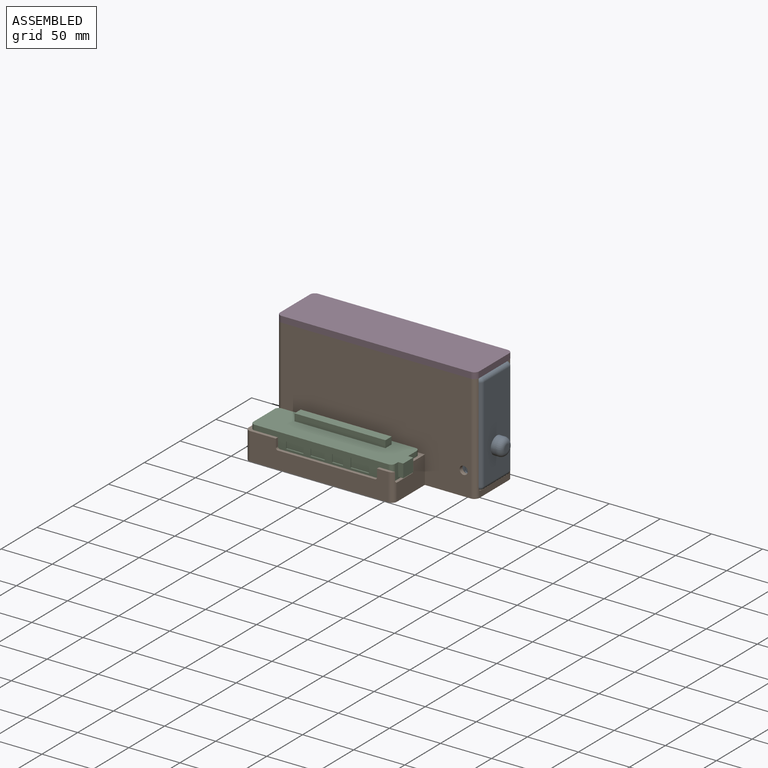
[diagram: assembled view]
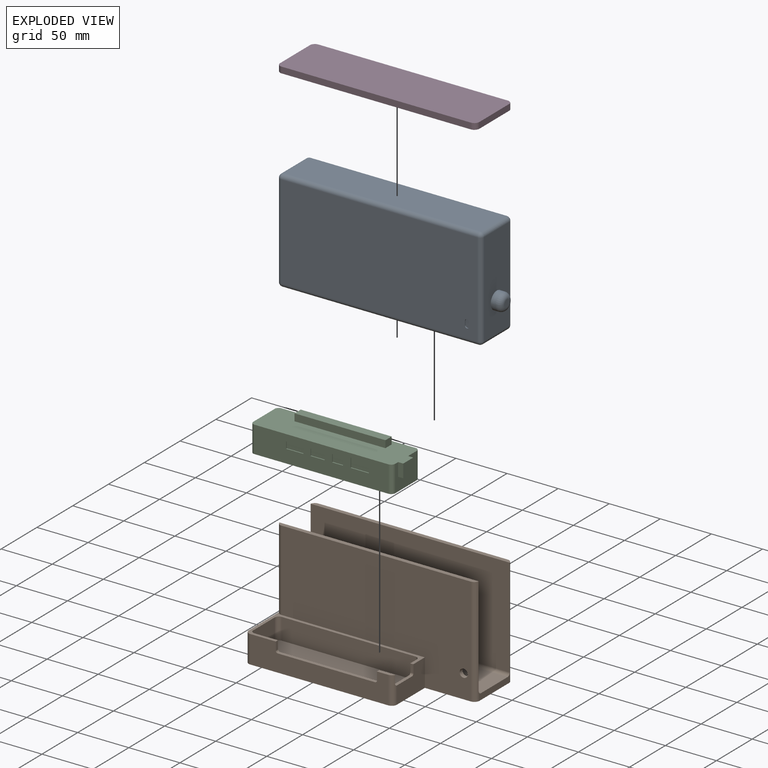
[diagram: exploded view]
GUIDED TOUR — MATED ASSEMBLY (Onshape document 3e485746a1df8e42529e07a9, AutoMate assembly 3e485746a1df8e42529e07a9_f4a6536de7e49509d50b94b5_0696d9ad59fbca37267c526e_default)

This assembly has 4 components, labeled P0..P3 below (a component is one placed occurrence of a part; the same part can appear more than once), held together by 3 mates. A mate is a constraint between two components; its type names the relative motion it leaves free:
  FASTENED — locks the two components together rigidly (no relative motion).
Axis/direction vectors are unit vectors and 'through' points are millimeter coordinates, both in the assembly's world frame.

MATES
  1. FASTENED "PSU ceil mount": P3 <-> P1, direction (0.000, 0.000, -1.000) through (-13.47, -27.76, 70.95) mm
  2. FASTENED "PSU Mount": P0 <-> P1, direction (0.000, 0.000, -1.000) through (-13.42, -2.11, -29.05) mm
  3. FASTENED "EXP Mount": P2 <-> P1, direction (0.000, 0.000, -1.000) through (-38.42, -49.76, -29.05) mm

ASSEMBLY ORDER
  1. P2 — the base component [order verified]
  2. P1 [order verified]
  3. P0 [order verified]
  4. P3 [order verified]
Order-tag legend:
  [order verified] — this step's position reverses a verified removal order: the component was checked to insert without passing through the ones already placed.

Of the 4 components, 1 carries the full construction recipe — the FeatureScript program that regenerates the part's solid from scratch; the rest are supplied as boundary geometry only.
Each toured component is shown spotlighted twice — in the assembled view, then in the exploded view, where a leader line traces a displaced component back to its assembled socket (saturated green if recipe-attached, orange if geometry-only; every other component desaturated gray) — followed by its recipe or geometry summary and the mates that hold it.
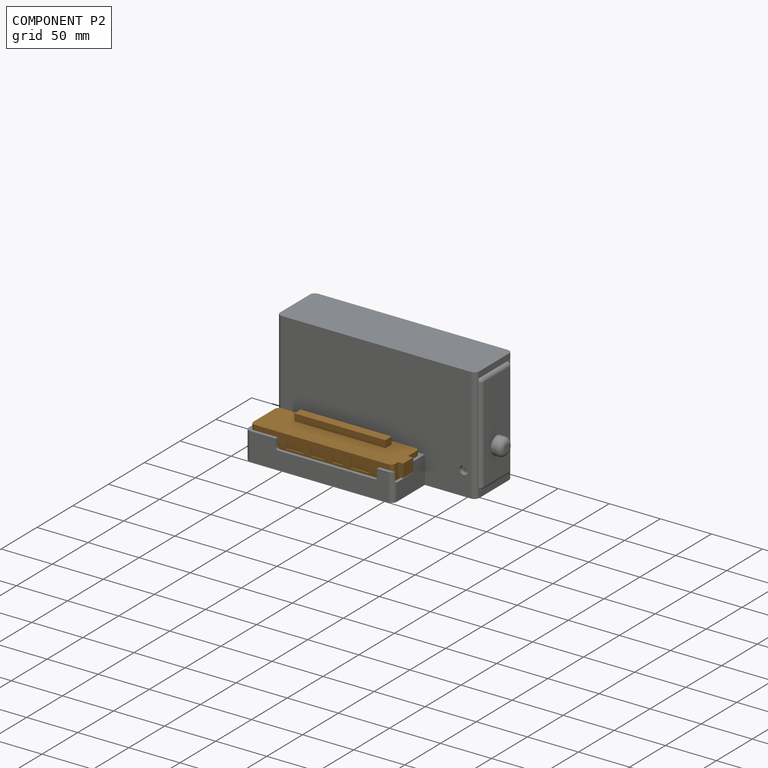
[diagram: component P2 — assembled]
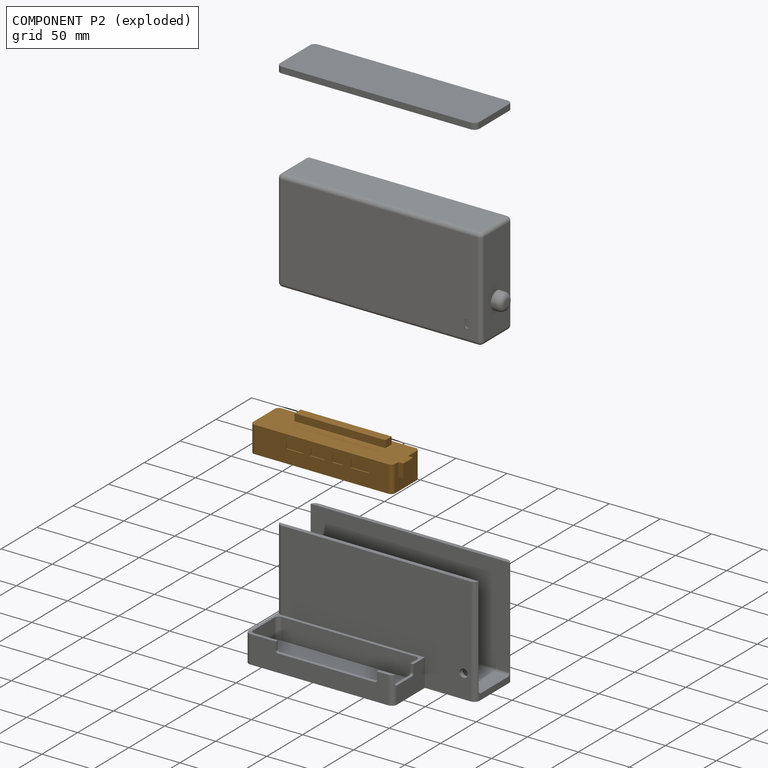
[diagram: component P2 — exploded]
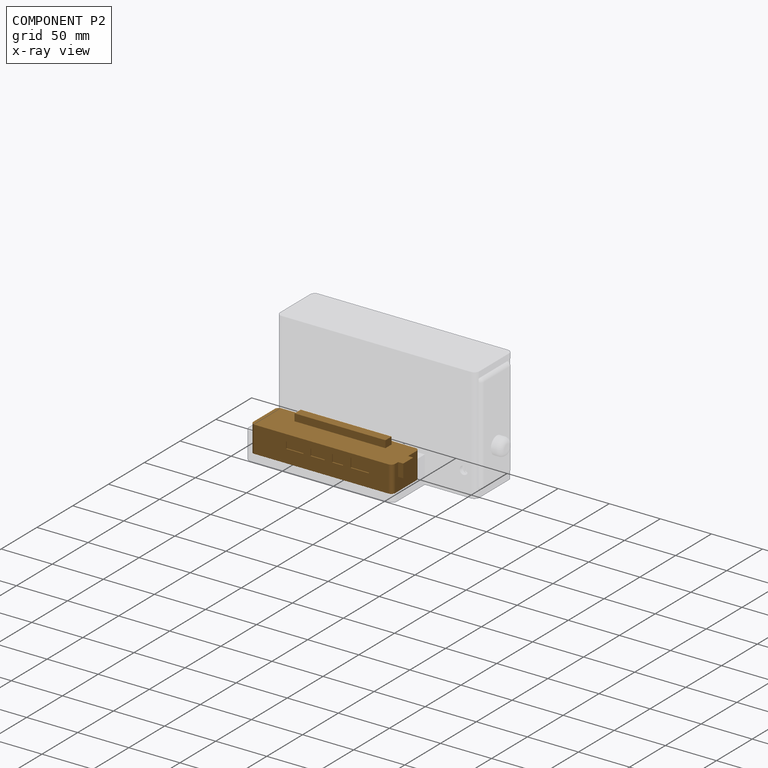
[diagram: component P2 — x-ray view]
COMPONENT P2 — geometry summary (no construction recipe available for this part):
  bounding box: 144.0 x 38.0 x 33.0 mm
  B-rep topology: 1 solid, 39 faces, 192 edges
  volume: 142864 mm^3 (79% of its bounding box)
Held by: FASTENED mate "EXP Mount" to P1.
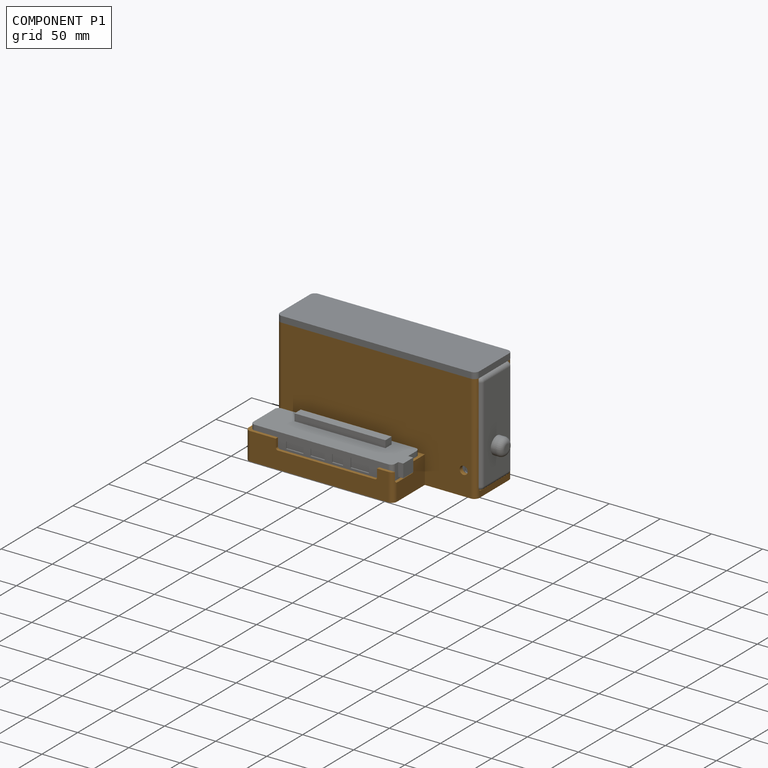
[diagram: component P1 — assembled]
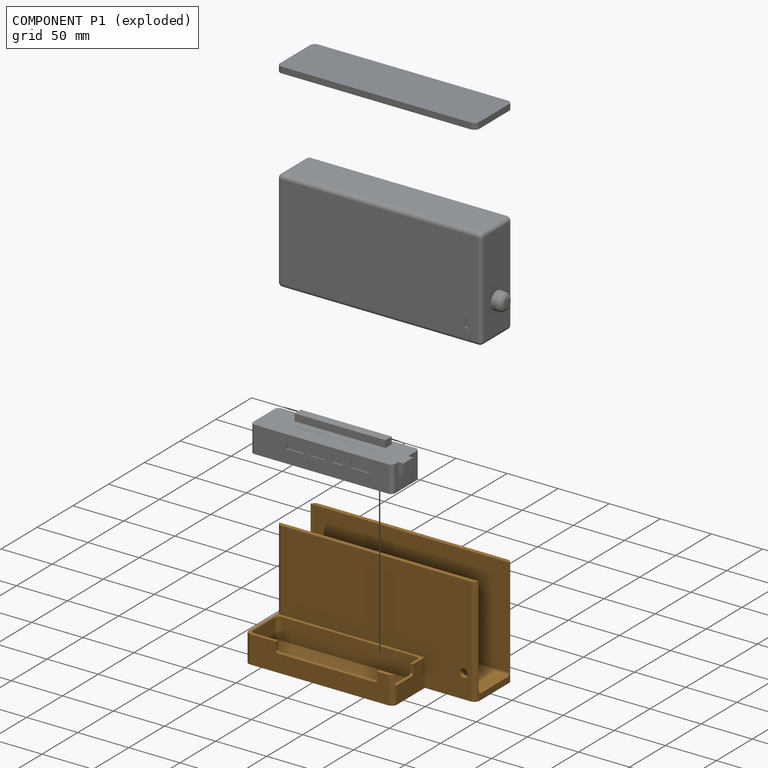
[diagram: component P1 — exploded]
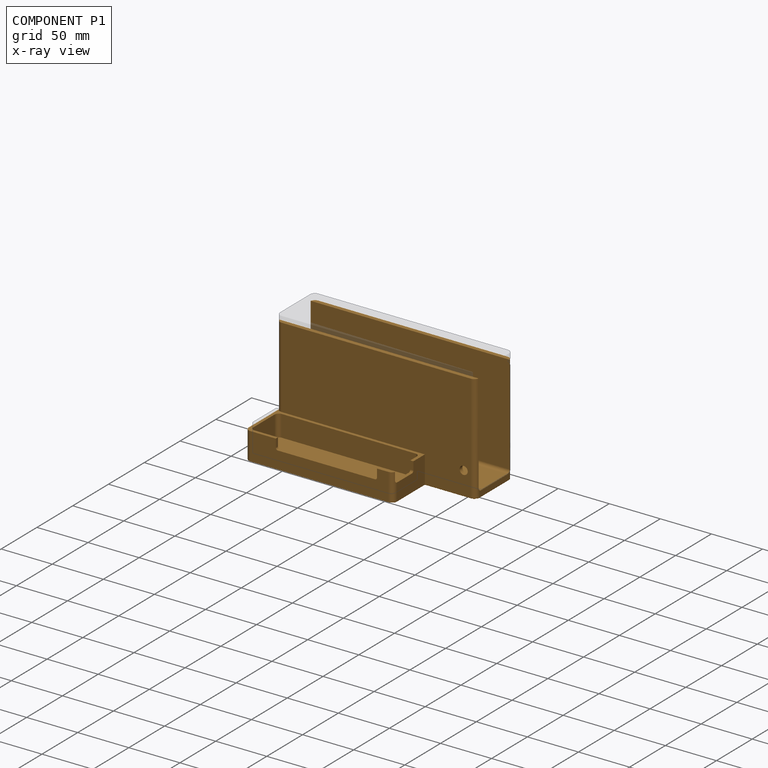
[diagram: component P1 — x-ray view]
COMPONENT P1 — geometry summary (no construction recipe available for this part):
  bounding box: 195.0 x 106.0 x 95.3 mm
  B-rep topology: 1 solid, 42 faces, 238 edges
  volume: 272084 mm^3 (14% of its bounding box)
Held by: FASTENED mate "PSU ceil mount" to P3; FASTENED mate "PSU Mount" to P0; FASTENED mate "EXP Mount" to P2.
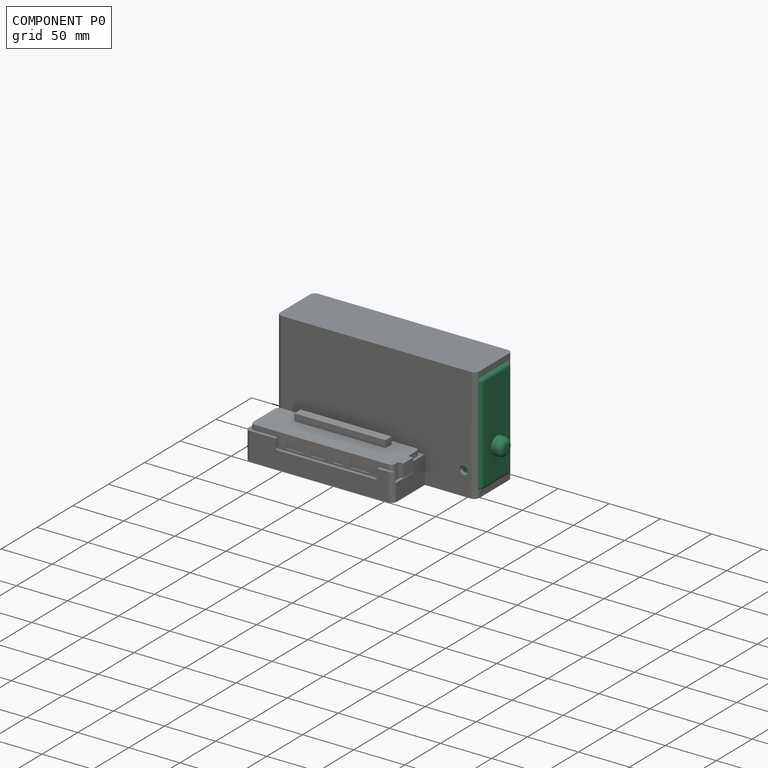
[diagram: component P0 — assembled]
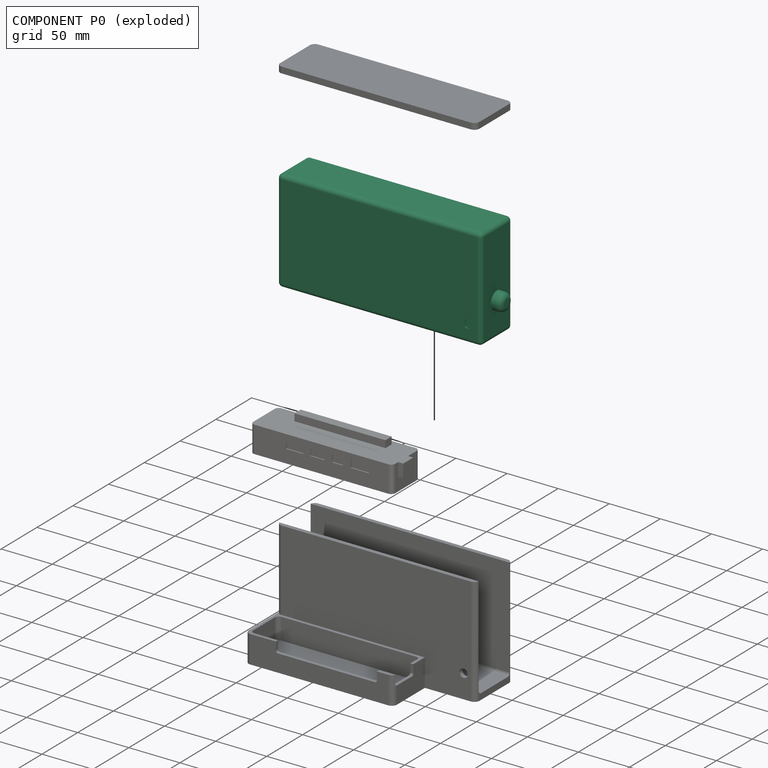
[diagram: component P0 — exploded]
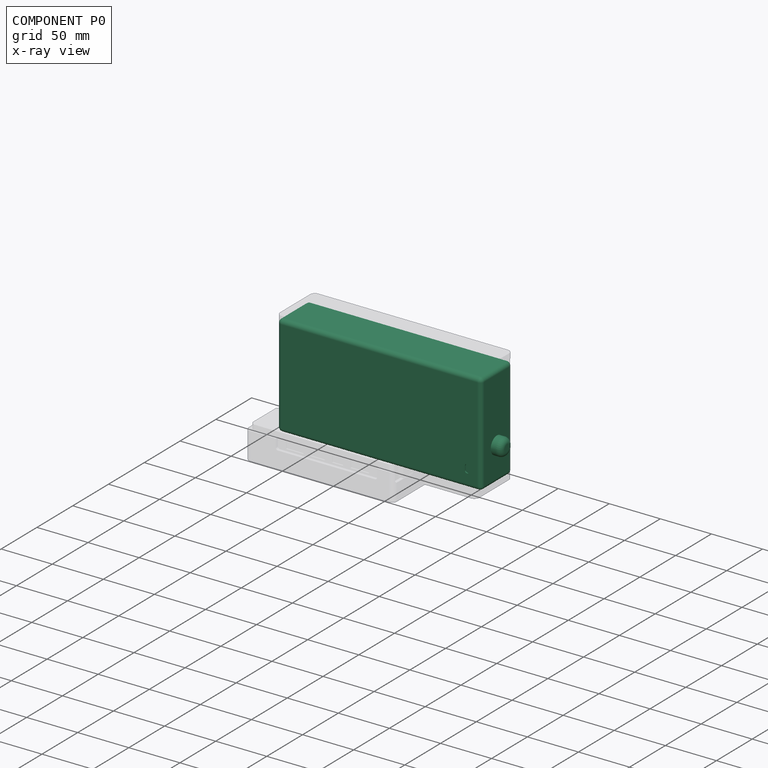
[diagram: component P0 — x-ray view]
COMPONENT P0 — recipe-attached (CADFS 00908505, mesh-verified: the recipe's output STEP matches this component's geometry to below the mesh-comparison resolution (tessellation chordal tolerance ~0.355 mm)).
Held by: FASTENED mate "PSU Mount" to P1.
Construction recipe (FeatureScript — the CAD program that rebuilds this solid; sketch coordinates are in the units given by the * unit suffixes, e.g. mm):

FeatureScript 1511;
import(path : "onshape/std/geometry.fs", version : "1511.0");
import(path : "onshape/std/common.fs", version : "1511.0");
const mm = millimeter;
const VERTEX = EntityType.VERTEX;
const EDGE = EntityType.EDGE;
const FACE = EntityType.FACE;
const BODY = EntityType.BODY;
function v(x, y){return vector(x, y);}
function OD(order){return orderDisambiguation(order);}
function OSD(set){return originalSetDisambiguation(set);}
function TD(topology){return topologyDisambiguation(topology);}
function TDD(query){return trueDependencyDisambiguation(query);}
function sQuery(a, b, c) {return sketchEntityQuery(a, b, c);}

annotation { "Feature Type Name" : "Feature", "Feature Type Description" : "" }
export const myFeature = defineFeature(function(context is Context, id is Id, definition is map)
    precondition{}
    {
        {
            var Q0;
            Q0=qCreatedBy(makeId("Right.planeOp"),FACE);
            var sketch = newSketch(context, id + "F0", { "sketchPlane" : qUnion([Q0])});
            skLineSegment(sketch, "E0.bottom", {"start": v(120.36, 60.38) * mm, "end": v(-79.64, 60.38) * mm});
            skLineSegment(sketch, "E0.top", {"start": v(120.36, -39.62) * mm, "end": v(-79.64, -39.62) * mm});
            skLineSegment(sketch, "E0.left", {"start": v(120.36, 60.38) * mm, "end": v(120.36, -39.62) * mm});
            skLineSegment(sketch, "E0.right", {"start": v(-79.64, 60.38) * mm, "end": v(-79.64, -39.62) * mm});
            skSolve(sketch);
        }
        {
            var Q0;
            Q0=makeQuery(id+"F0.imprint","IMPRINT",FACE,{"disambiguationData":[TD([[makeQuery(id+"F0.imprint","IMPRINT",EDGE,{"derivedFrom":sQuery(id+"F0.wireOp",EDGE,"E0.bottom")}),1.0]])]});
            extrude(context, id + "F1", {"entities" : qUnion([Q0]), "endBound" : BoundingType.SYMMETRIC, "depth" : 43.2 * mm, "offsetDistance" : 25 * mm});
        }
        {
            var Q0;
            Q0=makeQuery(id+"F1.opExtrude","SWEPT_EDGE",EDGE,{"disambiguationData":[OSD([sQuery(id+"F0.wireOp",EDGE,"E0.bottom"),sQuery(id+"F0.wireOp",EDGE,"E0.right")])]});
            var Q1;
            Q1=makeQuery(id+"F1.opExtrude","CAP_EDGE",EDGE,{"disambiguationData":[OSD([sQuery(id+"F0.wireOp",EDGE,"E0.right")])],"isStart":true});
            var Q2;
            Q2=makeQuery(id+"F1.opExtrude","CAP_EDGE",EDGE,{"disambiguationData":[OSD([sQuery(id+"F0.wireOp",EDGE,"E0.bottom")])],"isStart":true});
            var Q3;
            Q3=makeQuery(id+"F1.opExtrude","CAP_EDGE",EDGE,{"disambiguationData":[OSD([sQuery(id+"F0.wireOp",EDGE,"E0.bottom")])],"isStart":false});
            var Q4;
            Q4=makeQuery(id+"F1.opExtrude","CAP_EDGE",EDGE,{"disambiguationData":[OSD([sQuery(id+"F0.wireOp",EDGE,"E0.right")])],"isStart":false});
            var Q5;
            Q5=makeQuery(id+"F1.opExtrude","SWEPT_EDGE",EDGE,{"disambiguationData":[OSD([sQuery(id+"F0.wireOp",EDGE,"E0.top"),sQuery(id+"F0.wireOp",EDGE,"E0.right")])]});
            var Q6;
            Q6=makeQuery(id+"F1.opExtrude","CAP_EDGE",EDGE,{"disambiguationData":[OSD([sQuery(id+"F0.wireOp",EDGE,"E0.top")])],"isStart":true});
            var Q7;
            Q7=makeQuery(id+"F1.opExtrude","CAP_EDGE",EDGE,{"disambiguationData":[OSD([sQuery(id+"F0.wireOp",EDGE,"E0.top")])],"isStart":false});
            var Q8;
            Q8=makeQuery(id+"F1.opExtrude","CAP_EDGE",EDGE,{"disambiguationData":[OSD([sQuery(id+"F0.wireOp",EDGE,"E0.left")])],"isStart":false});
            var Q9;
            Q9=makeQuery(id+"F1.opExtrude","SWEPT_EDGE",EDGE,{"disambiguationData":[OSD([sQuery(id+"F0.wireOp",EDGE,"E0.top"),sQuery(id+"F0.wireOp",EDGE,"E0.left")])]});
            var Q10;
            Q10=makeQuery(id+"F1.opExtrude","CAP_EDGE",EDGE,{"disambiguationData":[OSD([sQuery(id+"F0.wireOp",EDGE,"E0.left")])],"isStart":true});
            var Q11;
            Q11=makeQuery(id+"F1.opExtrude","SWEPT_EDGE",EDGE,{"disambiguationData":[OSD([sQuery(id+"F0.wireOp",EDGE,"E0.bottom"),sQuery(id+"F0.wireOp",EDGE,"E0.left")])]});
            fillet(context, id + "F2", {"entities" : qUnion([Q0, Q1, Q2, Q3, Q4, Q5, Q6, Q7, Q8, Q9, Q10, Q11]), "radius" : 4 * mm, "tangentPropagation" : true, "allowEdgeOverflow" : false});
        }
        {
            var Q0;
            Q0=makeQuery(id+"F1.opExtrude","CAP_FACE",FACE,{"disambiguationData":[OSD([sQuery(id+"F0.wireOp",EDGE,"E0.bottom"),sQuery(id+"F0.wireOp",EDGE,"E0.top"),sQuery(id+"F0.wireOp",EDGE,"E0.left"),sQuery(id+"F0.wireOp",EDGE,"E0.right")])],"isStart":false});
            var sketch = newSketch(context, id + "F3", { "sketchPlane" : qUnion([Q0])});
            skLineSegment(sketch, "E1.bottom", {"start": v(106.36, -26.62) * mm, "end": v(106.26, -26.62) * mm});
            skLineSegment(sketch, "E1.top", {"start": v(106.36, -18.62) * mm, "end": v(106.26, -18.62) * mm});
            skLineSegment(sketch, "E1.left", {"start": v(108.36, -24.62) * mm, "end": v(108.36, -20.62) * mm});
            skLineSegment(sketch, "E1.right", {"start": v(104.26, -24.62) * mm, "end": v(104.26, -20.62) * mm});
            skPoint(sketch, "E2.visualSharp", {"position": v(108.36, -26.62) * mm});
            skArc(sketch, "E2.filletArc", {"start": v(106.36, -26.62) * mm, "mid": v(107.78, -26.04) * mm, "end": v(108.36, -24.62) * mm});
            skPoint(sketch, "E3.visualSharp", {"position": v(104.26, -26.62) * mm});
            skArc(sketch, "E3.filletArc", {"start": v(104.26, -24.62) * mm, "mid": v(104.85, -26.04) * mm, "end": v(106.26, -26.62) * mm});
            skPoint(sketch, "E4.visualSharp", {"position": v(108.36, -18.62) * mm});
            skArc(sketch, "E4.filletArc", {"start": v(108.36, -20.62) * mm, "mid": v(107.78, -19.2) * mm, "end": v(106.36, -18.62) * mm});
            skPoint(sketch, "E5.visualSharp", {"position": v(104.26, -18.62) * mm});
            skArc(sketch, "E5.filletArc", {"start": v(106.26, -18.62) * mm, "mid": v(104.85, -19.2) * mm, "end": v(104.26, -20.62) * mm});
            skSolve(sketch);
        }
        {
            var Q0;
            Q0=makeQuery(id+"F3.imprint","IMPRINT",FACE,{"disambiguationData":[TD([[makeQuery(id+"F3.imprint","IMPRINT",EDGE,{"derivedFrom":sQuery(id+"F3.wireOp",EDGE,"E1.bottom")}),-1.0]])]});
            extrude(context, id + "F4", {"entities" : qUnion([Q0]), "operationType" : NewBodyOperationType.REMOVE, "oppositeDirection" : true, "depth" : 1 * mm, "offsetDistance" : 25 * mm});
        }
        {
            var Q0;
            Q0=makeQuery(id+"F1.opExtrude","SWEPT_FACE",FACE,{"disambiguationData":[OSD([sQuery(id+"F0.wireOp",EDGE,"E0.left")])]});
            var sketch = newSketch(context, id + "F5", { "sketchPlane" : qUnion([Q0])});
            skCircle(sketch, "E6", {"center": v(0, -6.12) * mm, "radius": 8.5 * mm});
            skSolve(sketch);
        }
        {
            var Q0;
            Q0=makeQuery(id+"F5.imprint","IMPRINT",FACE,{"disambiguationData":[TD([[makeQuery(id+"F5.imprint","IMPRINT",EDGE,{"derivedFrom":sQuery(id+"F5.wireOp",EDGE,"E6")}),1.0]])]});
            extrude(context, id + "F6", {"entities" : qUnion([Q0]), "operationType" : NewBodyOperationType.ADD, "depth" : 10 * mm, "offsetDistance" : 25 * mm});
        }
        {
            var Q0;
            Q0=makeQuery(id+"F6.opExtrude","CAP_EDGE",EDGE,{"disambiguationData":[OSD([sQuery(id+"F5.wireOp",EDGE,"E6")])],"isStart":false});
            fillet(context, id + "F7", {"entities" : qUnion([Q0]), "radius" : 5 * mm, "tangentPropagation" : true, "allowEdgeOverflow" : false});
        }
        {
            var Q0;
            Q0=makeQuery(id+"F1.opExtrude","SWEPT_FACE",FACE,{"disambiguationData":[OSD([sQuery(id+"F0.wireOp",EDGE,"E0.right")])]});
            var sketch = newSketch(context, id + "F8", { "sketchPlane" : qUnion([Q0])});
            skLineSegment(sketch, "E7.bottom", {"start": v(12, -22.82) * mm, "end": v(-12, -22.82) * mm});
            skLineSegment(sketch, "E7.top", {"start": v(12, 7.58) * mm, "end": v(-12, 7.58) * mm});
            skLineSegment(sketch, "E7.left", {"start": v(12, -22.82) * mm, "end": v(12, 7.58) * mm});
            skLineSegment(sketch, "E7.right", {"start": v(-12, -22.82) * mm, "end": v(-12, 7.58) * mm});
            skLineSegment(sketch, "E8", {"start": v(-9, 4.18) * mm, "end": v(-9, -19.82) * mm});
            skLineSegment(sketch, "E9", {"start": v(-9, -19.82) * mm, "end": v(3.58, -19.82) * mm});
            skLineSegment(sketch, "E10", {"start": v(3.58, -19.82) * mm, "end": v(9, -14.32) * mm});
            skLineSegment(sketch, "E11", {"start": v(9, -14.32) * mm, "end": v(9, -1.32) * mm});
            skLineSegment(sketch, "E12", {"start": v(9, -1.32) * mm, "end": v(3.58, 4.39) * mm});
            skLineSegment(sketch, "E13", {"start": v(3.58, 4.39) * mm, "end": v(-9, 4.18) * mm});
            skLineSegment(sketch, "E14", {"start": v(9, -7.82) * mm, "end": v(-9, -7.82) * mm, "construction": true});
            skPoint(sketch, "E14.endSnap0", {"position": v(-9, -7.82) * mm});
            skSolve(sketch);
        }
        {
            var Q0;
            Q0=makeQuery(id+"F8.imprint","IMPRINT",FACE,{"disambiguationData":[TD([[makeQuery(id+"F8.imprint","IMPRINT",EDGE,{"derivedFrom":sQuery(id+"F8.wireOp",EDGE,"E7.bottom")}),-1.0]])]});
            extrude(context, id + "F9", {"entities" : qUnion([Q0]), "operationType" : NewBodyOperationType.REMOVE, "oppositeDirection" : true, "depth" : 10 * mm, "offsetDistance" : 25 * mm});
        }
    });
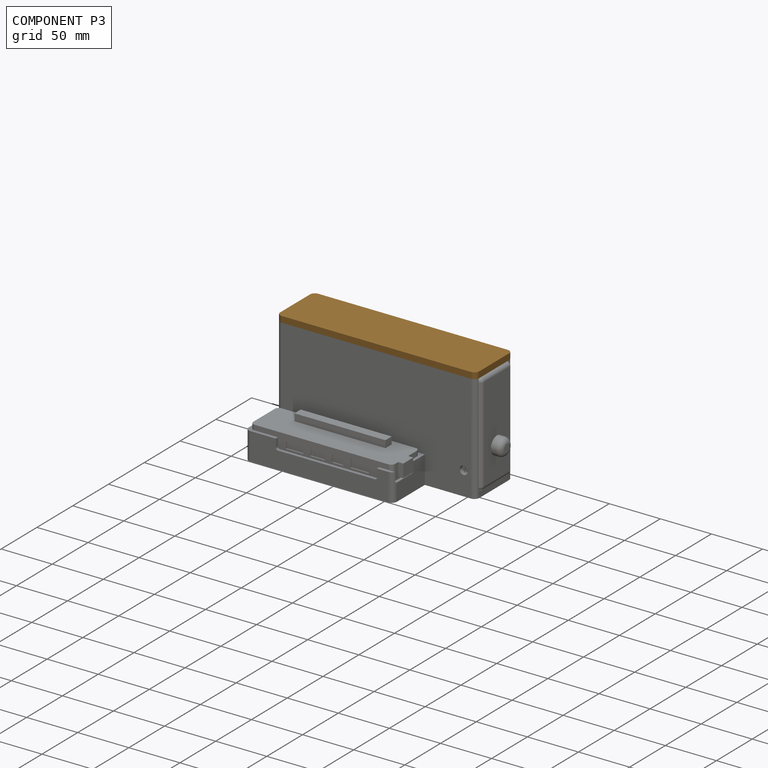
[diagram: component P3 — assembled]
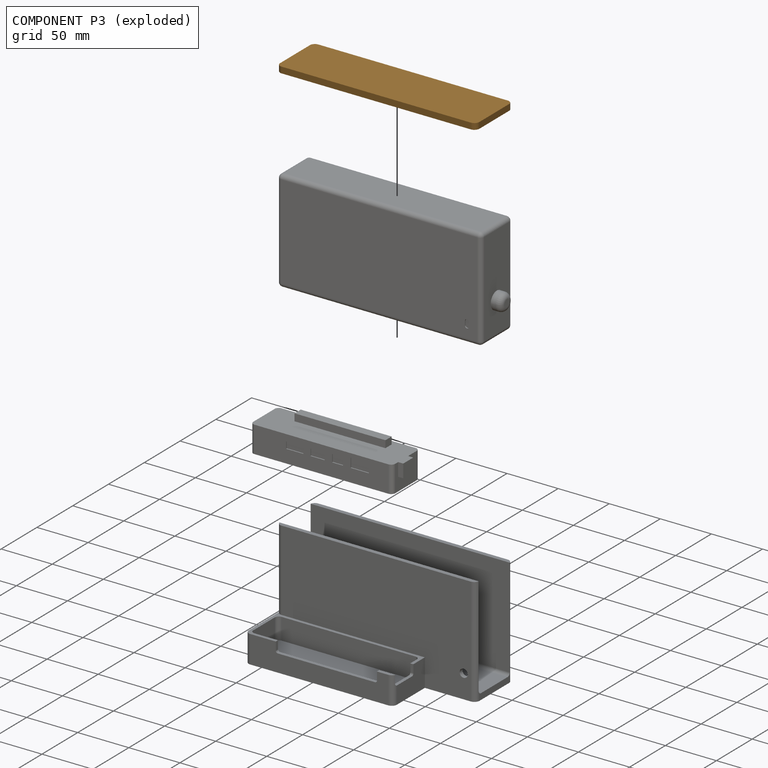
[diagram: component P3 — exploded]
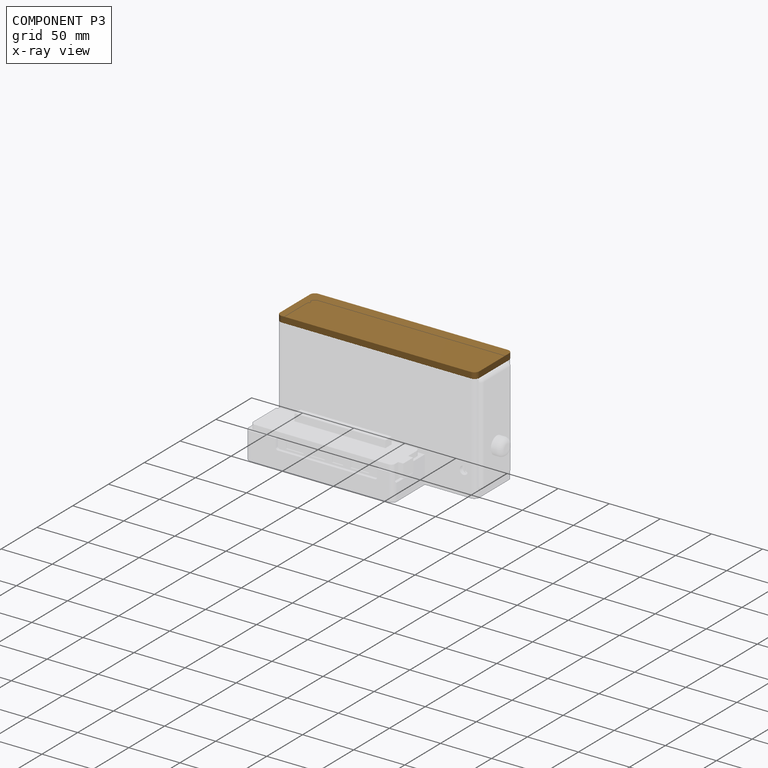
[diagram: component P3 — x-ray view]
COMPONENT P3 — geometry summary (no construction recipe available for this part):
  bounding box: 194.9 x 51.3 x 6.0 mm
  B-rep topology: 1 solid, 11 faces, 54 edges
  volume: 59869 mm^3 (100% of its bounding box)
  symmetry: 2-fold rotationally symmetric about the x axis; 2-fold rotationally symmetric about the y axis; 2-fold rotationally symmetric about the z axis; mirror-symmetric across its x mid-plane, y mid-plane, z mid-plane
Held by: FASTENED mate "PSU ceil mount" to P1.
PROVENANCE & LICENSES
Assembly (occurrences, transforms, mates, per-part STEP geometry): AutoMate dataset, Zenodo record 7776208, CC0.
Construction recipes: CADFS (HuggingFace VladPyatov/CADFS, CC-BY-4.0, layered over the ABC dataset), FeatureScript reconstruction programs keyed by ABC model id.
Join: ABC meta listings map ABC model id -> Onshape documentId; within a shared document, parts are matched by geometric signature (bounding-box dims + volume at 0.1% relative tolerance, exact B-rep face/solid counts).
Verification: 1 of this assembly's 4 components carries a recipe attachment, and every attachment is mesh-verified: the CADFS STEP and the AutoMate member STEP were compared as meshes in their shared local frame (symmetric sampled-point-to-mesh distance); worst across the 1 attachment: below the mesh-comparison resolution (tessellation chordal tolerance ~0.355 mm) on a 237 mm part.
Renders: orthographic iso camera (az 35 / el 25); the floor grid conveys scale (grid pitch printed in each image; no ruler). In the exploded view each component is displaced by its stored offset vector: the offsets alone carry the explosion direction (mate normal/axis signs are not orientation cues and do not encode it), and separation distances are assigned per mate-chain, not proportionally to assembly-order depth.
